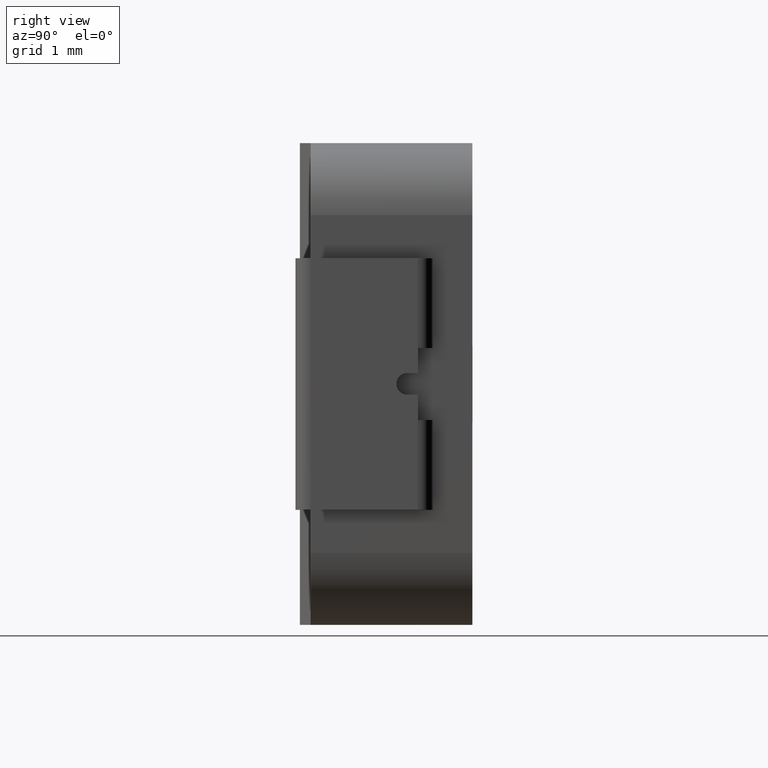
[diagram: clean part render]
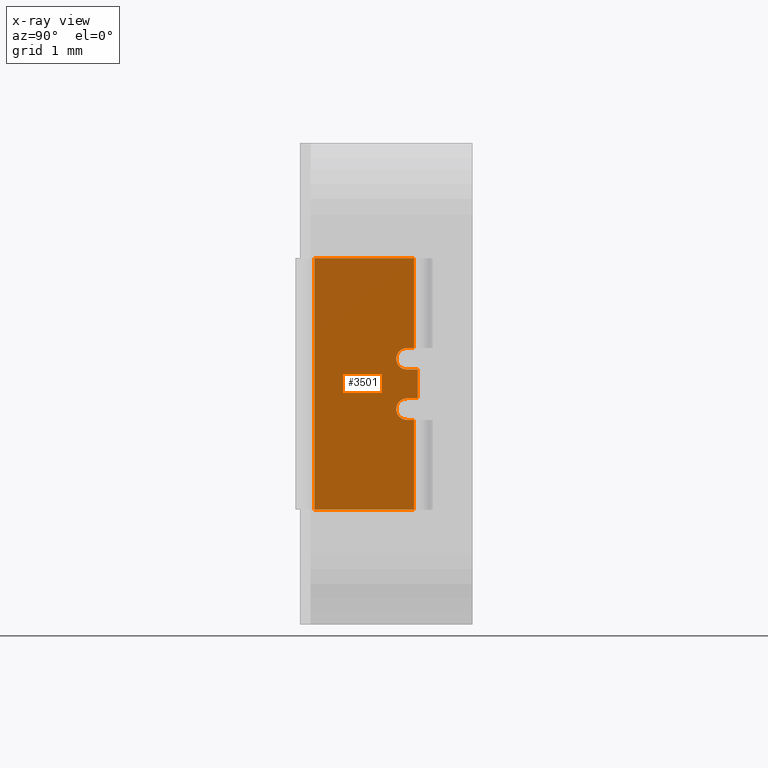
[diagram: x-ray — body ghosted, one internal face saturated and labeled with its STEP entity id]
A machine part, right view, then the same camera in x-ray: the body is ghosted and one INTERNAL B-rep face — a face not visible from any outside direction — is saturated and labeled: STEP entity #3501.
In plain terms, the highlighted planar face has unit normal (-1, 0, 0).
Its self-contained STEP definition (entity closure, byte-faithful):
#70 = CARTESIAN_POINT ( 'NONE',  ( -3.365000000000001545, 1.490000000000150093, 0.1999999999996999733 ) ) ;
#88 = CARTESIAN_POINT ( 'NONE',  ( -3.365000000000001545, 1.589999999999999858, 0.5000000000000000000 ) ) ;
#147 = CARTESIAN_POINT ( 'NONE',  ( -3.365000000000001545, 1.849999999999999867, -0.5000000000000011102 ) ) ;
#148 = CARTESIAN_POINT ( 'NONE',  ( -3.365000000000001545, 1.490000000000150093, -0.3499999999998513189 ) ) ;
#252 = ORIENTED_EDGE ( 'NONE', *, *, #3154, .T. ) ;
#282 = LINE ( 'NONE', #5671, #3071 ) ;
#319 = VERTEX_POINT ( 'NONE', #324 ) ;
#324 = CARTESIAN_POINT ( 'NONE',  ( -3.365000000000001545, 1.589999999999999858, 1.750000000000000000 ) ) ;
#403 = CARTESIAN_POINT ( 'NONE',  ( -3.365000000000001545, 1.589999999999999858, -1.750000000000000000 ) ) ;
#451 = DIRECTION ( 'NONE',  ( -2.270580465938228980E-16, -1.000000000000000000, -1.505836350674940118E-16 ) ) ;
#465 = DIRECTION ( 'NONE',  ( -2.270580465938228980E-16, -1.000000000000000000, 0.0000000000000000000 ) ) ;
#474 = EDGE_CURVE ( 'NONE', #5755, #6416, #4246, .T. ) ;
#493 = VECTOR ( 'NONE', #827, 1000.000000000000000 ) ;
#521 = LINE ( 'NONE', #1145, #1492 ) ;
#534 = EDGE_CURVE ( 'NONE', #1572, #6723, #5343, .T. ) ;
#588 = DIRECTION ( 'NONE',  ( 0.0000000000000000000, -0.0000000000000000000, -1.000000000000000000 ) ) ;
#759 = DIRECTION ( 'NONE',  ( 0.0000000000000000000, -0.0000000000000000000, -1.000000000000000000 ) ) ;
#785 = ORIENTED_EDGE ( 'NONE', *, *, #5260, .T. ) ;
#815 = VERTEX_POINT ( 'NONE', #2984 ) ;
#827 = DIRECTION ( 'NONE',  ( 0.0000000000000000000, -0.0000000000000000000, -1.000000000000000000 ) ) ;
#910 = VERTEX_POINT ( 'NONE', #2111 ) ;
#1143 = VERTEX_POINT ( 'NONE', #70 ) ;
#1145 = CARTESIAN_POINT ( 'NONE',  ( -3.365000000000001545, 1.639999999999999680, 1.750000000000000000 ) ) ;
#1192 = DIRECTION ( 'NONE',  ( 0.0000000000000000000, -1.000000000000000000, 0.0000000000000000000 ) ) ;
#1223 = EDGE_CURVE ( 'NONE', #3376, #1671, #5434, .T. ) ;
#1232 = DIRECTION ( 'NONE',  ( -1.000000000000000000, 2.270580465938228980E-16, 0.0000000000000000000 ) ) ;
#1350 = ORIENTED_EDGE ( 'NONE', *, *, #4875, .T. ) ;
#1492 = VECTOR ( 'NONE', #4270, 1000.000000000000000 ) ;
#1572 = VERTEX_POINT ( 'NONE', #2059 ) ;
#1606 = DIRECTION ( 'NONE',  ( -1.000000000000000000, 2.270580465938228980E-16, 0.0000000000000000000 ) ) ;
#1614 = VECTOR ( 'NONE', #3307, 1000.000000000000000 ) ;
#1671 = VERTEX_POINT ( 'NONE', #4645 ) ;
#1709 = LINE ( 'NONE', #6534, #493 ) ;
#1868 = ORIENTED_EDGE ( 'NONE', *, *, #3514, .T. ) ;
#2059 = CARTESIAN_POINT ( 'NONE',  ( -3.365000000000001545, 1.490000000000150315, -0.5000000000000013323 ) ) ;
#2111 = CARTESIAN_POINT ( 'NONE',  ( -3.365000000000001545, 1.640000000000000124, 0.1999999999996999733 ) ) ;
#2223 = VECTOR ( 'NONE', #4858, 1000.000000000000000 ) ;
#2294 = EDGE_LOOP ( 'NONE', ( #785, #3397, #4323, #1868, #5069, #4037, #2330, #6256, #3578, #4841, #252, #1350 ) ) ;
#2315 = LINE ( 'NONE', #6228, #6464 ) ;
#2330 = ORIENTED_EDGE ( 'NONE', *, *, #474, .F. ) ;
#2640 = LINE ( 'NONE', #2650, #5402 ) ;
#2650 = CARTESIAN_POINT ( 'NONE',  ( -3.365000000000001545, 1.849999999999999867, 1.750000000000000000 ) ) ;
#2879 = AXIS2_PLACEMENT_3D ( 'NONE', #5888, #6506, #1192 ) ;
#2984 = CARTESIAN_POINT ( 'NONE',  ( -3.365000000000002434, 1.640000000000000124, -0.1999999999997012778 ) ) ;
#3015 = LINE ( 'NONE', #3063, #1614 ) ;
#3063 = CARTESIAN_POINT ( 'NONE',  ( -3.365000000000001545, 1.849999999999999867, 0.5000000000000000000 ) ) ;
#3064 = CARTESIAN_POINT ( 'NONE',  ( -3.365000000000001545, 1.490000000000150093, 0.5000000000000000000 ) ) ;
#3071 = VECTOR ( 'NONE', #4156, 1000.000000000000000 ) ;
#3154 = EDGE_CURVE ( 'NONE', #815, #910, #521, .T. ) ;
#3190 = DIRECTION ( 'NONE',  ( 2.270580465938228980E-16, 1.000000000000000000, 0.0000000000000000000 ) ) ;
#3307 = DIRECTION ( 'NONE',  ( 2.270580465938228980E-16, 1.000000000000000000, -0.0000000000000000000 ) ) ;
#3376 = VERTEX_POINT ( 'NONE', #4491 ) ;
#3397 = ORIENTED_EDGE ( 'NONE', *, *, #5688, .T. ) ;
#3501 = ADVANCED_FACE ( 'NONE', ( #5970 ), #6767, .F. ) ;
#3510 = VECTOR ( 'NONE', #4909, 1000.000000000000000 ) ;
#3514 = EDGE_CURVE ( 'NONE', #319, #3376, #2640, .T. ) ;
#3578 = ORIENTED_EDGE ( 'NONE', *, *, #534, .T. ) ;
#3769 = CARTESIAN_POINT ( 'NONE',  ( -3.365000000000001990, 0.1999999999999996780, 1.750000000000000000 ) ) ;
#3802 = EDGE_CURVE ( 'NONE', #5755, #1572, #4394, .T. ) ;
#3833 = EDGE_CURVE ( 'NONE', #319, #4565, #1709, .T. ) ;
#3924 = VECTOR ( 'NONE', #588, 1000.000000000000000 ) ;
#4000 = CARTESIAN_POINT ( 'NONE',  ( -3.365000000000001545, 1.589999999999999858, -0.5000000000000011102 ) ) ;
#4037 = ORIENTED_EDGE ( 'NONE', *, *, #6511, .F. ) ;
#4070 = AXIS2_PLACEMENT_3D ( 'NONE', #148, #1232, #5855 ) ;
#4156 = DIRECTION ( 'NONE',  ( -2.270580465938228980E-16, -1.000000000000000000, 0.0000000000000000000 ) ) ;
#4246 = LINE ( 'NONE', #6269, #3924 ) ;
#4270 = DIRECTION ( 'NONE',  ( -4.923536547946756620E-32, -2.168404344971010347E-16, 1.000000000000000000 ) ) ;
#4323 = ORIENTED_EDGE ( 'NONE', *, *, #3833, .F. ) ;
#4394 = LINE ( 'NONE', #147, #2223 ) ;
#4449 = CARTESIAN_POINT ( 'NONE',  ( -3.365000000000001545, 1.849999999999999867, -0.1999999999997012778 ) ) ;
#4491 = CARTESIAN_POINT ( 'NONE',  ( -3.365000000000001990, 0.1999999999999996780, 1.750000000000000000 ) ) ;
#4565 = VERTEX_POINT ( 'NONE', #88 ) ;
#4645 = CARTESIAN_POINT ( 'NONE',  ( -3.365000000000001990, 0.1999999999999996780, -1.750000000000000000 ) ) ;
#4841 = ORIENTED_EDGE ( 'NONE', *, *, #5504, .T. ) ;
#4858 = DIRECTION ( 'NONE',  ( -2.270580465938228980E-16, -1.000000000000000000, 0.0000000000000000000 ) ) ;
#4865 = VERTEX_POINT ( 'NONE', #3064 ) ;
#4875 = EDGE_CURVE ( 'NONE', #910, #1143, #2315, .T. ) ;
#4909 = DIRECTION ( 'NONE',  ( 2.270580465938228980E-16, 1.000000000000000000, -0.0000000000000000000 ) ) ;
#5043 = LINE ( 'NONE', #4449, #3510 ) ;
#5069 = ORIENTED_EDGE ( 'NONE', *, *, #1223, .T. ) ;
#5224 = CIRCLE ( 'NONE', #2879, 0.1500000000001500133 ) ;
#5260 = EDGE_CURVE ( 'NONE', #1143, #4865, #5224, .T. ) ;
#5343 = CIRCLE ( 'NONE', #4070, 0.1500000000001500133 ) ;
#5402 = VECTOR ( 'NONE', #465, 1000.000000000000000 ) ;
#5434 = LINE ( 'NONE', #3769, #5512 ) ;
#5504 = EDGE_CURVE ( 'NONE', #6723, #815, #5043, .T. ) ;
#5512 = VECTOR ( 'NONE', #759, 1000.000000000000000 ) ;
#5671 = CARTESIAN_POINT ( 'NONE',  ( -3.365000000000001545, 1.849999999999999867, -1.750000000000000000 ) ) ;
#5688 = EDGE_CURVE ( 'NONE', #4865, #4565, #3015, .T. ) ;
#5707 = CARTESIAN_POINT ( 'NONE',  ( -3.365000000000001545, 1.490000000000150093, -0.1999999999997012778 ) ) ;
#5755 = VERTEX_POINT ( 'NONE', #4000 ) ;
#5828 = AXIS2_PLACEMENT_3D ( 'NONE', #6272, #1606, #3190 ) ;
#5855 = DIRECTION ( 'NONE',  ( 0.0000000000000000000, -1.000000000000000000, 0.0000000000000000000 ) ) ;
#5888 = CARTESIAN_POINT ( 'NONE',  ( -3.365000000000001545, 1.490000000000150093, 0.3499999999998499867 ) ) ;
#5970 = FACE_OUTER_BOUND ( 'NONE', #2294, .T. ) ;
#6228 = CARTESIAN_POINT ( 'NONE',  ( -3.365000000000001545, 1.850000000000000089, 0.1999999999996999733 ) ) ;
#6256 = ORIENTED_EDGE ( 'NONE', *, *, #3802, .T. ) ;
#6269 = CARTESIAN_POINT ( 'NONE',  ( -3.365000000000001545, 1.589999999999999858, 1.750000000000000000 ) ) ;
#6272 = CARTESIAN_POINT ( 'NONE',  ( -3.365000000000001545, 1.849999999999999867, 1.750000000000000000 ) ) ;
#6416 = VERTEX_POINT ( 'NONE', #403 ) ;
#6464 = VECTOR ( 'NONE', #451, 1000.000000000000000 ) ;
#6506 = DIRECTION ( 'NONE',  ( -1.000000000000000000, 2.270580465938228980E-16, 0.0000000000000000000 ) ) ;
#6511 = EDGE_CURVE ( 'NONE', #6416, #1671, #282, .T. ) ;
#6534 = CARTESIAN_POINT ( 'NONE',  ( -3.365000000000001545, 1.589999999999999858, 1.750000000000000000 ) ) ;
#6723 = VERTEX_POINT ( 'NONE', #5707 ) ;
#6767 = PLANE ( 'NONE',  #5828 ) ;